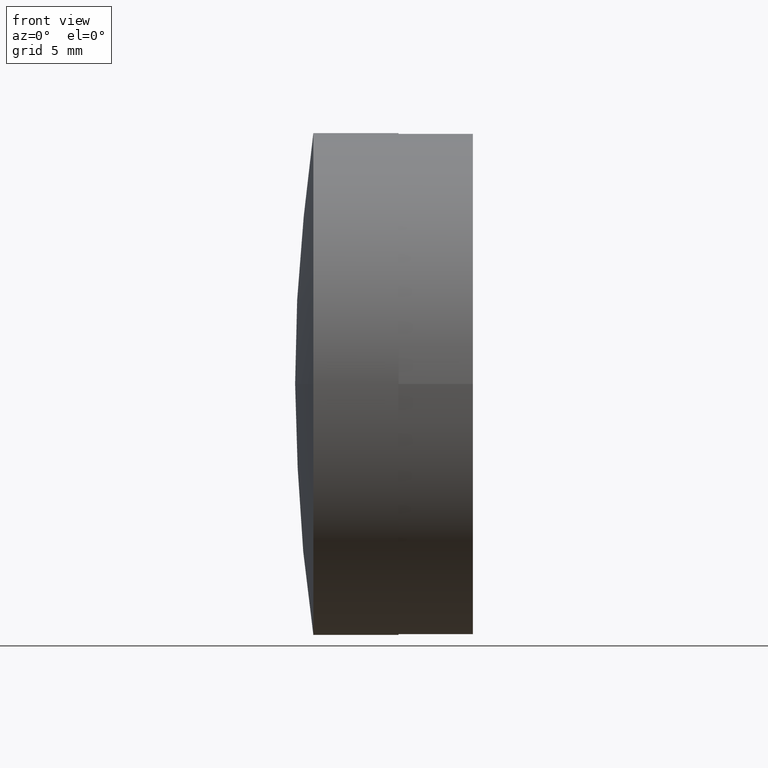
[diagram: clean part render]
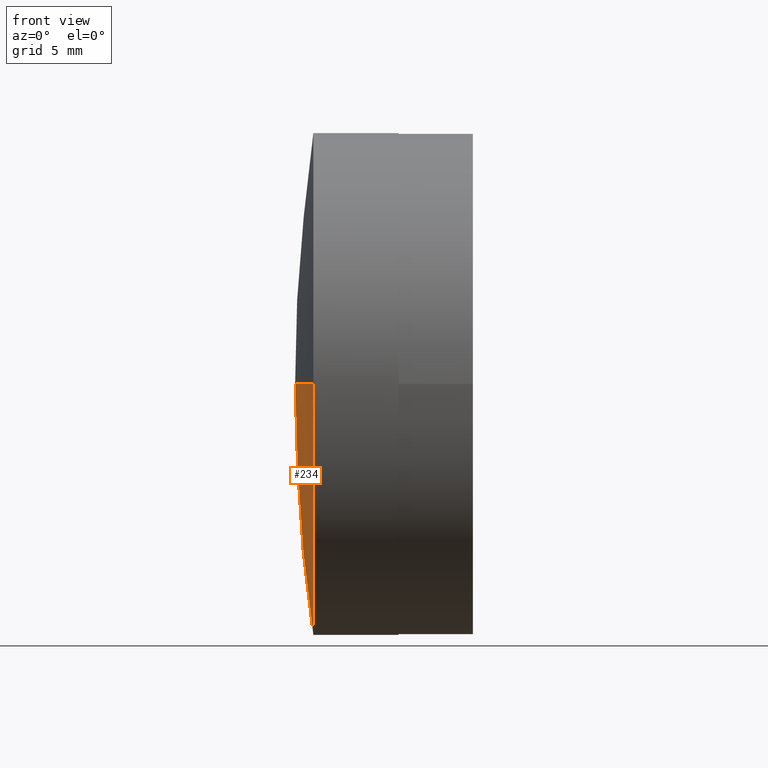
[diagram: same view with one face highlighted and labeled with its STEP entity id]
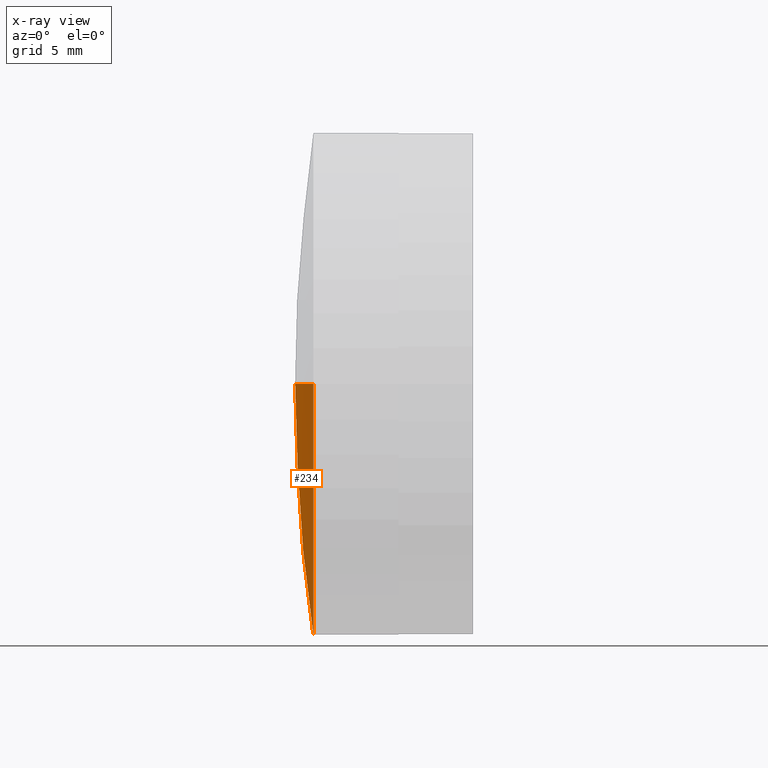
[diagram: x-ray of the same camera — body ghosted, the highlighted face saturated]
A machine part, front view. The second image highlights one B-rep face of the part: STEP entity #234.
The next image is the same camera in x-ray: the body ghosted, the highlighted face saturated — about 0% of this face is hidden behind the body in this view.
In plain terms, the highlighted spherical surface has radius 87.86 mm.
Its self-contained STEP definition (entity closure, byte-faithful):
#1 = AXIS2_PLACEMENT_3D ( 'NONE', #187, #366, #335 ) ;
#2 = ORIENTED_EDGE ( 'NONE', *, *, #151, .T. ) ;
#15 = DIRECTION ( 'NONE',  ( -1.000000000000000000, -0.000000000000000000, -0.000000000000000000 ) ) ;
#27 = EDGE_CURVE ( 'NONE', #126, #32, #132, .T. ) ;
#28 = CARTESIAN_POINT ( 'NONE',  ( -37.05941295107898981, 32.49878037169513334, 0.000000000000000000 ) ) ;
#32 = VERTEX_POINT ( 'NONE', #98 ) ;
#35 = AXIS2_PLACEMENT_3D ( 'NONE', #141, #231, #259 ) ;
#57 = AXIS2_PLACEMENT_3D ( 'NONE', #310, #15, #307 ) ;
#66 = AXIS2_PLACEMENT_3D ( 'NONE', #359, #177, #363 ) ;
#73 = AXIS2_PLACEMENT_3D ( 'NONE', #268, #181, #356 ) ;
#98 = CARTESIAN_POINT ( 'NONE',  ( -36.13668689039688076, 32.49878037169512623, -12.69999999999999929 ) ) ;
#115 = EDGE_LOOP ( 'NONE', ( #334, #214, #2, #283 ) ) ;
#117 = CIRCLE ( 'NONE', #73, 87.85999999999999943 ) ;
#119 = SPHERICAL_SURFACE ( 'NONE', #66, 87.85999999999999943 ) ;
#126 = VERTEX_POINT ( 'NONE', #314 ) ;
#132 = CIRCLE ( 'NONE', #57, 12.69999999999999929 ) ;
#141 = CARTESIAN_POINT ( 'NONE',  ( 50.80058704892100963, 32.49878037169512623, 0.000000000000000000 ) ) ;
#146 = CIRCLE ( 'NONE', #35, 87.85999999999999943 ) ;
#151 = EDGE_CURVE ( 'NONE', #301, #252, #146, .T. ) ;
#177 = DIRECTION ( 'NONE',  ( -0.000000000000000000, 0.000000000000000000, -1.000000000000000000 ) ) ;
#179 = EDGE_CURVE ( 'NONE', #126, #252, #117, .T. ) ;
#181 = DIRECTION ( 'NONE',  ( -0.000000000000000000, 0.000000000000000000, 1.000000000000000000 ) ) ;
#187 = CARTESIAN_POINT ( 'NONE',  ( -36.13668689039688076, 32.49878037169512623, 0.000000000000000000 ) ) ;
#214 = ORIENTED_EDGE ( 'NONE', *, *, #263, .T. ) ;
#231 = DIRECTION ( 'NONE',  ( 0.000000000000000000, 1.224646799147353207E-16, -1.000000000000000000 ) ) ;
#234 = ADVANCED_FACE ( 'NONE', ( #294 ), #119, .T. ) ;
#252 = VERTEX_POINT ( 'NONE', #28 ) ;
#259 = DIRECTION ( 'NONE',  ( 0.000000000000000000, 1.000000000000000000, 1.224646799147353207E-16 ) ) ;
#263 = EDGE_CURVE ( 'NONE', #32, #301, #295, .T. ) ;
#268 = CARTESIAN_POINT ( 'NONE',  ( 50.80058704892100963, 32.49878037169512623, 0.000000000000000000 ) ) ;
#283 = ORIENTED_EDGE ( 'NONE', *, *, #179, .F. ) ;
#294 = FACE_OUTER_BOUND ( 'NONE', #115, .T. ) ;
#295 = CIRCLE ( 'NONE', #1, 12.69999999999999929 ) ;
#301 = VERTEX_POINT ( 'NONE', #309 ) ;
#307 = DIRECTION ( 'NONE',  ( 0.000000000000000000, 0.000000000000000000, 1.000000000000000000 ) ) ;
#309 = CARTESIAN_POINT ( 'NONE',  ( -36.13668689039688076, 19.79878037169516247, -1.555301434917133699E-15 ) ) ;
#310 = CARTESIAN_POINT ( 'NONE',  ( -36.13668689039688076, 32.49878037169512623, 0.000000000000000000 ) ) ;
#314 = CARTESIAN_POINT ( 'NONE',  ( -36.13668689039688076, 45.19878037169508644, 0.000000000000000000 ) ) ;
#334 = ORIENTED_EDGE ( 'NONE', *, *, #27, .T. ) ;
#335 = DIRECTION ( 'NONE',  ( 0.000000000000000000, 0.000000000000000000, 1.000000000000000000 ) ) ;
#356 = DIRECTION ( 'NONE',  ( 1.000000000000000000, 0.000000000000000000, 0.000000000000000000 ) ) ;
#359 = CARTESIAN_POINT ( 'NONE',  ( 50.80058704892100963, 32.49878037169512623, 0.000000000000000000 ) ) ;
#363 = DIRECTION ( 'NONE',  ( 0.000000000000000000, 1.000000000000000000, 0.000000000000000000 ) ) ;
#366 = DIRECTION ( 'NONE',  ( -1.000000000000000000, -0.000000000000000000, -0.000000000000000000 ) ) ;